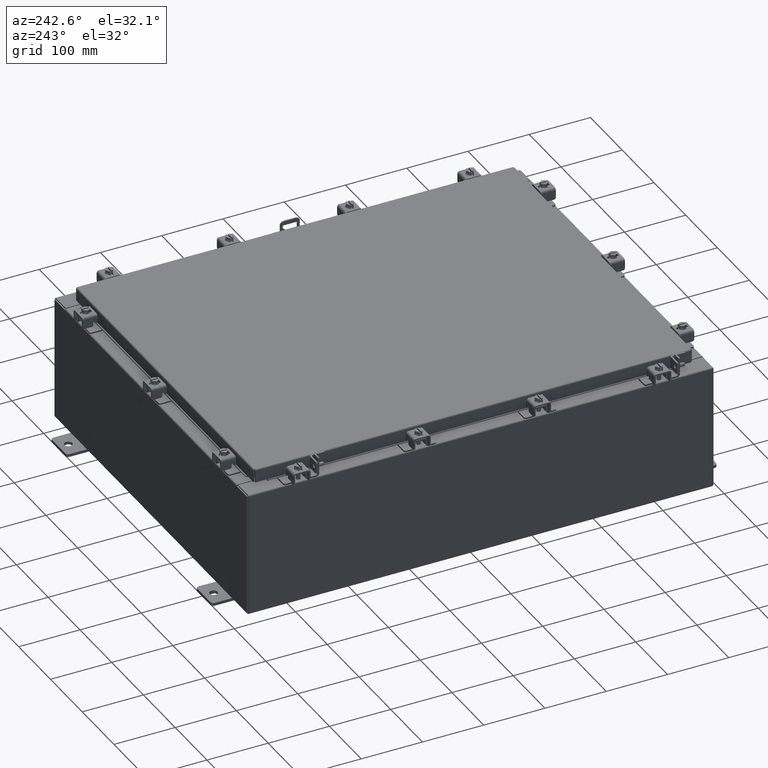
[diagram: clean part render]
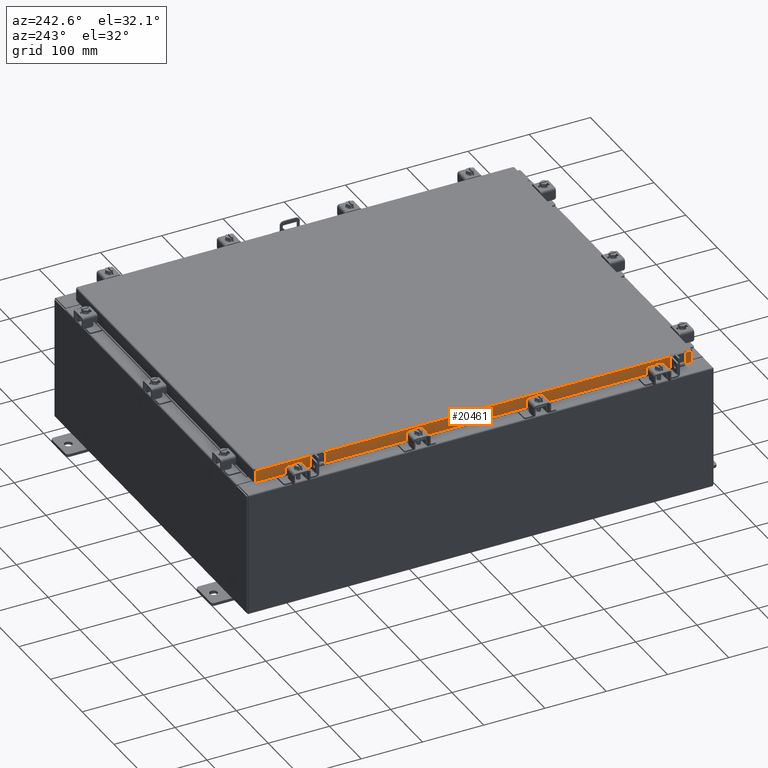
[diagram: same view with one face highlighted and labeled with its STEP entity id]
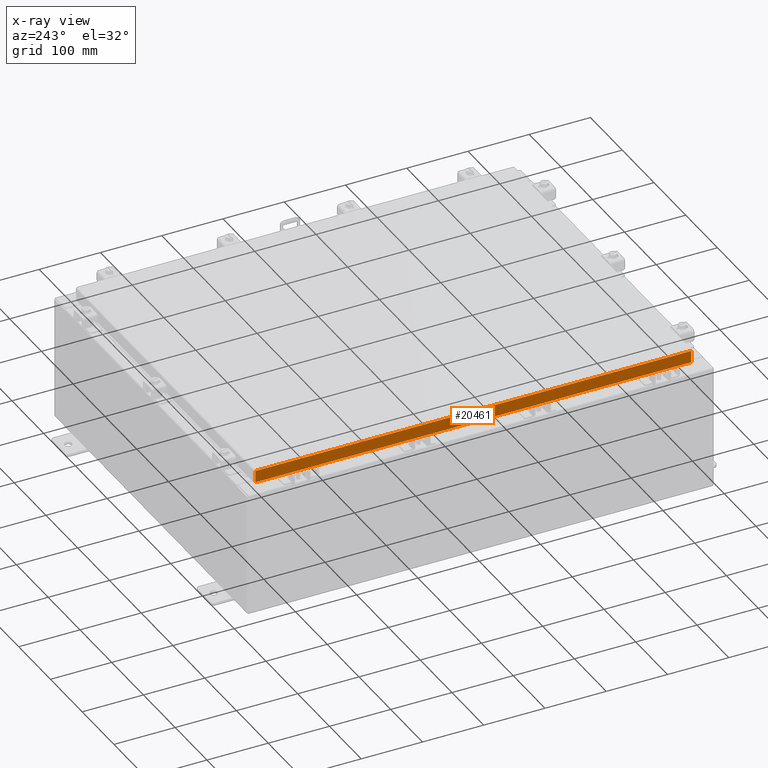
[diagram: x-ray of the same camera — body ghosted, the highlighted face saturated]
A machine part, auxiliary view. The second image highlights one B-rep face of the part: STEP entity #20461.
The next image is the same camera in x-ray: the body ghosted, the highlighted face saturated — about 0% of this face is hidden behind the body in this view.
In plain terms, the highlighted planar face has unit normal (1, 0, -0).
Its self-contained STEP definition (entity closure, byte-faithful):
#21 = DIRECTION ( 'NONE',  ( -0.0000000000000000000, 1.000000000000000000, -0.0000000000000000000 ) ) ;
#110 = EDGE_LOOP ( 'NONE', ( #8744, #14750, #12057, #15528, #10673, #19719 ) ) ;
#1051 = DIRECTION ( 'NONE',  ( -0.0000000000000000000, 1.000000000000000000, 1.211441035930299800E-016 ) ) ;
#1346 = CARTESIAN_POINT ( 'NONE',  ( -11.07799999999999900, 14.00515786437626900, -0.08770000000000007000 ) ) ;
#2316 = VECTOR ( 'NONE', #10989, 39.37007874015748100 ) ;
#2972 = LINE ( 'NONE', #11811, #9692 ) ;
#3663 = VERTEX_POINT ( 'NONE', #4932 ) ;
#4932 = CARTESIAN_POINT ( 'NONE',  ( -11.07799999999999900, -14.00515786437626400, -0.08770000000000007000 ) ) ;
#5146 = PLANE ( 'NONE',  #18871 ) ;
#5362 = CARTESIAN_POINT ( 'NONE',  ( -11.07799999999999600, -13.25515786437626200, -0.8500000000000012000 ) ) ;
#5544 = CARTESIAN_POINT ( 'NONE',  ( -11.07799999999999600, 13.25515786437627400, -0.8500000000000012000 ) ) ;
#5669 = VECTOR ( 'NONE', #1051, 39.37007874015748100 ) ;
#5985 = CARTESIAN_POINT ( 'NONE',  ( -11.07800000000000300, -14.00515786437626200, -0.8499999999999996400 ) ) ;
#6046 = EDGE_CURVE ( 'NONE', #16324, #3663, #7283, .T. ) ;
#6229 = LINE ( 'NONE', #6378, #5669 ) ;
#6378 = CARTESIAN_POINT ( 'NONE',  ( -11.07800000000000300, -14.09399999999999600, -0.8499999999999996400 ) ) ;
#6884 = VECTOR ( 'NONE', #21, 39.37007874015748100 ) ;
#7075 = VERTEX_POINT ( 'NONE', #5985 ) ;
#7085 = LINE ( 'NONE', #21703, #2316 ) ;
#7283 = LINE ( 'NONE', #15182, #12045 ) ;
#8084 = DIRECTION ( 'NONE',  ( 3.414908049476327800E-031, -1.000000000000000000, -9.308245715024052500E-046 ) ) ;
#8744 = ORIENTED_EDGE ( 'NONE', *, *, #6046, .F. ) ;
#8753 = DIRECTION ( 'NONE',  ( -2.818880942772360100E-015, 0.0000000000000000000, -1.000000000000000000 ) ) ;
#9429 = LINE ( 'NONE', #11219, #18973 ) ;
#9507 = VERTEX_POINT ( 'NONE', #5544 ) ;
#9623 = EDGE_CURVE ( 'NONE', #16324, #13570, #9429, .T. ) ;
#9692 = VECTOR ( 'NONE', #22506, 39.37007874015748100 ) ;
#10056 = EDGE_CURVE ( 'NONE', #22215, #9507, #21706, .T. ) ;
#10673 = ORIENTED_EDGE ( 'NONE', *, *, #15006, .F. ) ;
#10989 = DIRECTION ( 'NONE',  ( -2.818880942772360100E-015, 6.982962677686265900E-015, -1.000000000000000000 ) ) ;
#11219 = CARTESIAN_POINT ( 'NONE',  ( -11.07799999999999900, 14.00515786437626900, 1.292858714020875700E-013 ) ) ;
#11731 = FACE_OUTER_BOUND ( 'NONE', #110, .T. ) ;
#11811 = CARTESIAN_POINT ( 'NONE',  ( -11.07800000000000300, -14.09399999999999600, -0.8499999999999996400 ) ) ;
#12018 = EDGE_CURVE ( 'NONE', #3663, #7075, #7085, .T. ) ;
#12045 = VECTOR ( 'NONE', #8084, 39.37007874015748100 ) ;
#12057 = ORIENTED_EDGE ( 'NONE', *, *, #12330, .F. ) ;
#12330 = EDGE_CURVE ( 'NONE', #9507, #13570, #6229, .T. ) ;
#13570 = VERTEX_POINT ( 'NONE', #16769 ) ;
#14750 = ORIENTED_EDGE ( 'NONE', *, *, #9623, .T. ) ;
#15006 = EDGE_CURVE ( 'NONE', #7075, #22215, #2972, .T. ) ;
#15182 = CARTESIAN_POINT ( 'NONE',  ( -11.07799999999999900, -14.09399999999999600, -0.08770000000000007000 ) ) ;
#15528 = ORIENTED_EDGE ( 'NONE', *, *, #10056, .F. ) ;
#16324 = VERTEX_POINT ( 'NONE', #1346 ) ;
#16769 = CARTESIAN_POINT ( 'NONE',  ( -11.07800000000000300, 14.00515786437627400, -0.8499999999999963100 ) ) ;
#17664 = CARTESIAN_POINT ( 'NONE',  ( -11.07799999999999900, -3.783035137209876100E-030, 3.148837674004379000E-014 ) ) ;
#18034 = CARTESIAN_POINT ( 'NONE',  ( -11.07799999999999600, -13.25515786437625600, -0.8500000000000012000 ) ) ;
#18400 = DIRECTION ( 'NONE',  ( -2.818880942772360100E-015, 6.982962677686265900E-015, -1.000000000000000000 ) ) ;
#18871 = AXIS2_PLACEMENT_3D ( 'NONE', #17664, #19472, #8753 ) ;
#18973 = VECTOR ( 'NONE', #18400, 39.37007874015748100 ) ;
#19472 = DIRECTION ( 'NONE',  ( 1.000000000000000000, 3.414908049476327800E-031, -2.818880942772360100E-015 ) ) ;
#19719 = ORIENTED_EDGE ( 'NONE', *, *, #12018, .F. ) ;
#20461 = ADVANCED_FACE ( 'NONE', ( #11731 ), #5146, .F. ) ;
#21703 = CARTESIAN_POINT ( 'NONE',  ( -11.07799999999999900, -14.00515786437626500, -0.07469999999999978000 ) ) ;
#21706 = LINE ( 'NONE', #5362, #6884 ) ;
#22215 = VERTEX_POINT ( 'NONE', #18034 ) ;
#22506 = DIRECTION ( 'NONE',  ( -0.0000000000000000000, 1.000000000000000000, 1.211441035930299800E-016 ) ) ;